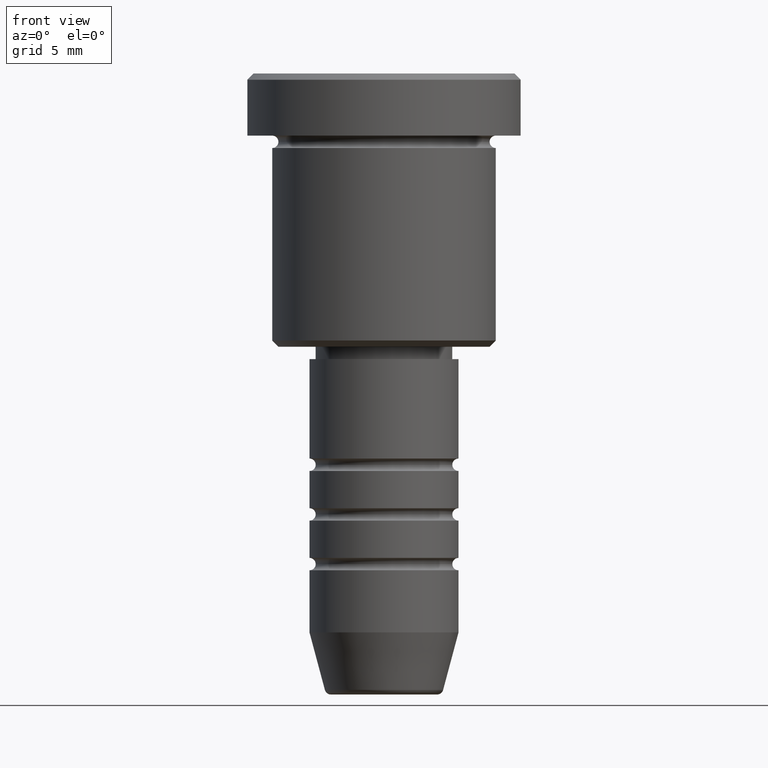
[diagram: clean part render]
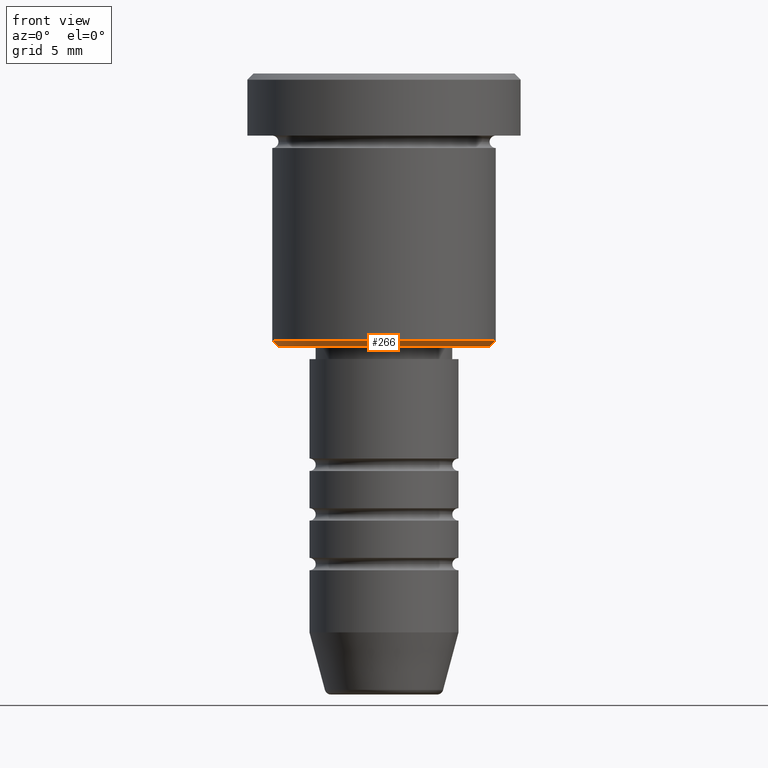
[diagram: same view with one face highlighted and labeled with its STEP entity id]
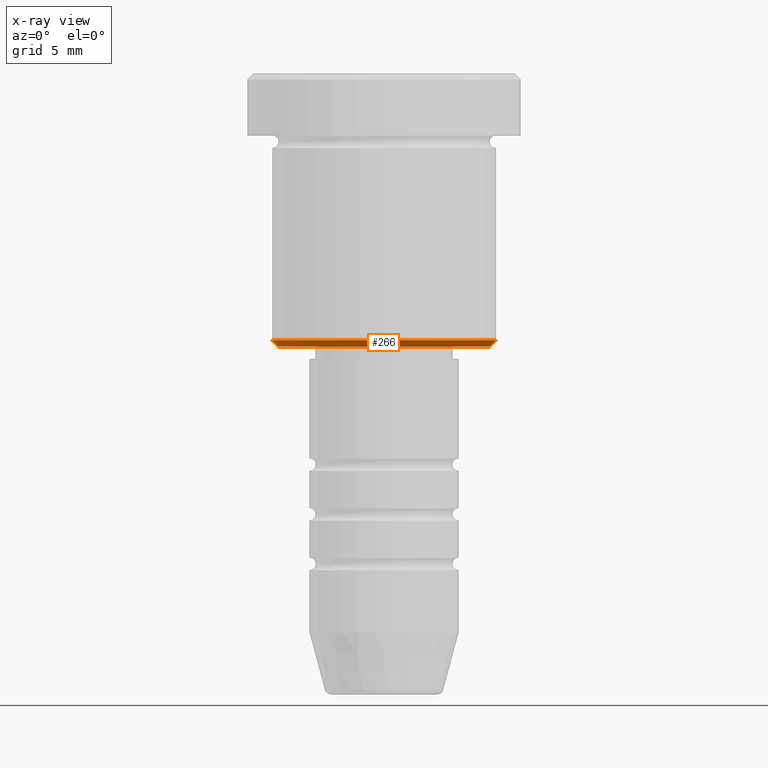
[diagram: x-ray of the same camera — body ghosted, the highlighted face saturated]
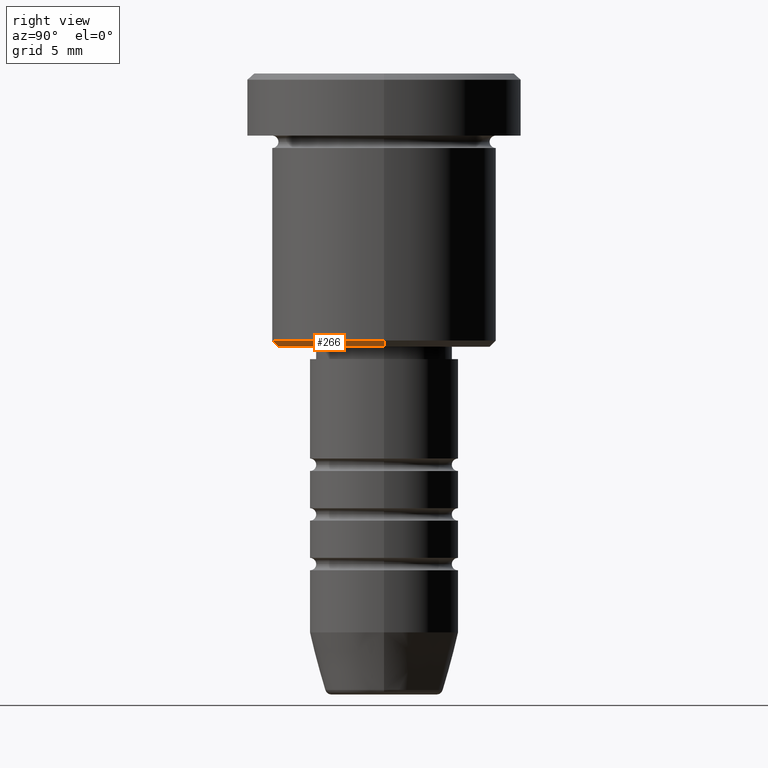
[diagram: same view with one face highlighted and labeled with its STEP entity id]
A machine part, front view. The second image highlights one B-rep face of the part: STEP entity #266.
The next image is the same camera in x-ray: the body ghosted, the highlighted face saturated — about 0% of this face is hidden behind the body in this view.
A second angle (right view) of the same face is appended — the face is thin or edge-on in the first view.
In plain terms, the highlighted conical surface has half-angle 45 deg.
Its self-contained STEP definition (entity closure, byte-faithful):
#13 = ORIENTED_EDGE ( 'NONE', *, *, #259, .F. ) ;
#59 = CONICAL_SURFACE ( 'NONE', #1166, 9.000000000000000000, 0.7853981633974603804 ) ;
#124 = CARTESIAN_POINT ( 'NONE',  ( -9.000000000000000000, 1.102182119232617714E-15, -21.50000000000000355 ) ) ;
#137 = AXIS2_PLACEMENT_3D ( 'NONE', #663, #480, #1115 ) ;
#150 = ORIENTED_EDGE ( 'NONE', *, *, #839, .F. ) ;
#186 = ORIENTED_EDGE ( 'NONE', *, *, #873, .F. ) ;
#201 = VECTOR ( 'NONE', #1050, 1000.000000000000000 ) ;
#229 = VERTEX_POINT ( 'NONE', #937 ) ;
#259 = EDGE_CURVE ( 'NONE', #451, #747, #760, .T. ) ;
#266 = ADVANCED_FACE ( 'NONE', ( #740 ), #59, .T. ) ;
#268 = CARTESIAN_POINT ( 'NONE',  ( 8.499999999999992895, 0.000000000000000000, -22.00000000000000000 ) ) ;
#406 = CIRCLE ( 'NONE', #576, 9.000000000000000000 ) ;
#437 = CARTESIAN_POINT ( 'NONE',  ( 9.000000000000000000, 0.000000000000000000, -21.50000000000000355 ) ) ;
#451 = VERTEX_POINT ( 'NONE', #268 ) ;
#456 = EDGE_CURVE ( 'NONE', #451, #458, #794, .T. ) ;
#458 = VERTEX_POINT ( 'NONE', #437 ) ;
#480 = DIRECTION ( 'NONE',  ( 0.000000000000000000, 0.000000000000000000, -1.000000000000000000 ) ) ;
#491 = DIRECTION ( 'NONE',  ( -0.000000000000000000, -0.000000000000000000, 1.000000000000000000 ) ) ;
#498 = CARTESIAN_POINT ( 'NONE',  ( 0.000000000000000000, 0.000000000000000000, -21.50000000000000355 ) ) ;
#514 = ORIENTED_EDGE ( 'NONE', *, *, #456, .T. ) ;
#520 = VECTOR ( 'NONE', #797, 1000.000000000000000 ) ;
#576 = AXIS2_PLACEMENT_3D ( 'NONE', #498, #602, #963 ) ;
#602 = DIRECTION ( 'NONE',  ( -0.000000000000000000, -0.000000000000000000, 1.000000000000000000 ) ) ;
#663 = CARTESIAN_POINT ( 'NONE',  ( 0.000000000000000000, 0.000000000000000000, -22.00000000000000000 ) ) ;
#677 = DIRECTION ( 'NONE',  ( 1.000000000000000000, 0.000000000000000000, 0.000000000000000000 ) ) ;
#716 = CARTESIAN_POINT ( 'NONE',  ( 9.000000000000000000, 0.000000000000000000, -21.50000000000000355 ) ) ;
#740 = FACE_OUTER_BOUND ( 'NONE', #906, .T. ) ;
#747 = VERTEX_POINT ( 'NONE', #1045 ) ;
#760 = CIRCLE ( 'NONE', #137, 8.499999999999992895 ) ;
#794 = LINE ( 'NONE', #716, #520 ) ;
#797 = DIRECTION ( 'NONE',  ( 0.7071067811865561215, 0.000000000000000000, 0.7071067811865390240 ) ) ;
#839 = EDGE_CURVE ( 'NONE', #747, #229, #857, .T. ) ;
#857 = LINE ( 'NONE', #124, #201 ) ;
#873 = EDGE_CURVE ( 'NONE', #229, #458, #406, .T. ) ;
#906 = EDGE_LOOP ( 'NONE', ( #150, #13, #514, #186 ) ) ;
#937 = CARTESIAN_POINT ( 'NONE',  ( -9.000000000000000000, 1.102182119232617714E-15, -21.50000000000000355 ) ) ;
#963 = DIRECTION ( 'NONE',  ( -1.000000000000000000, 0.000000000000000000, 0.000000000000000000 ) ) ;
#1033 = CARTESIAN_POINT ( 'NONE',  ( 0.000000000000000000, 0.000000000000000000, -21.50000000000000355 ) ) ;
#1045 = CARTESIAN_POINT ( 'NONE',  ( -8.499999999999992895, 1.071565949253933532E-15, -22.00000000000000000 ) ) ;
#1050 = DIRECTION ( 'NONE',  ( -0.7071067811865561215, 8.659560562355038861E-17, 0.7071067811865390240 ) ) ;
#1115 = DIRECTION ( 'NONE',  ( -1.000000000000000000, 0.000000000000000000, 0.000000000000000000 ) ) ;
#1166 = AXIS2_PLACEMENT_3D ( 'NONE', #1033, #491, #677 ) ;